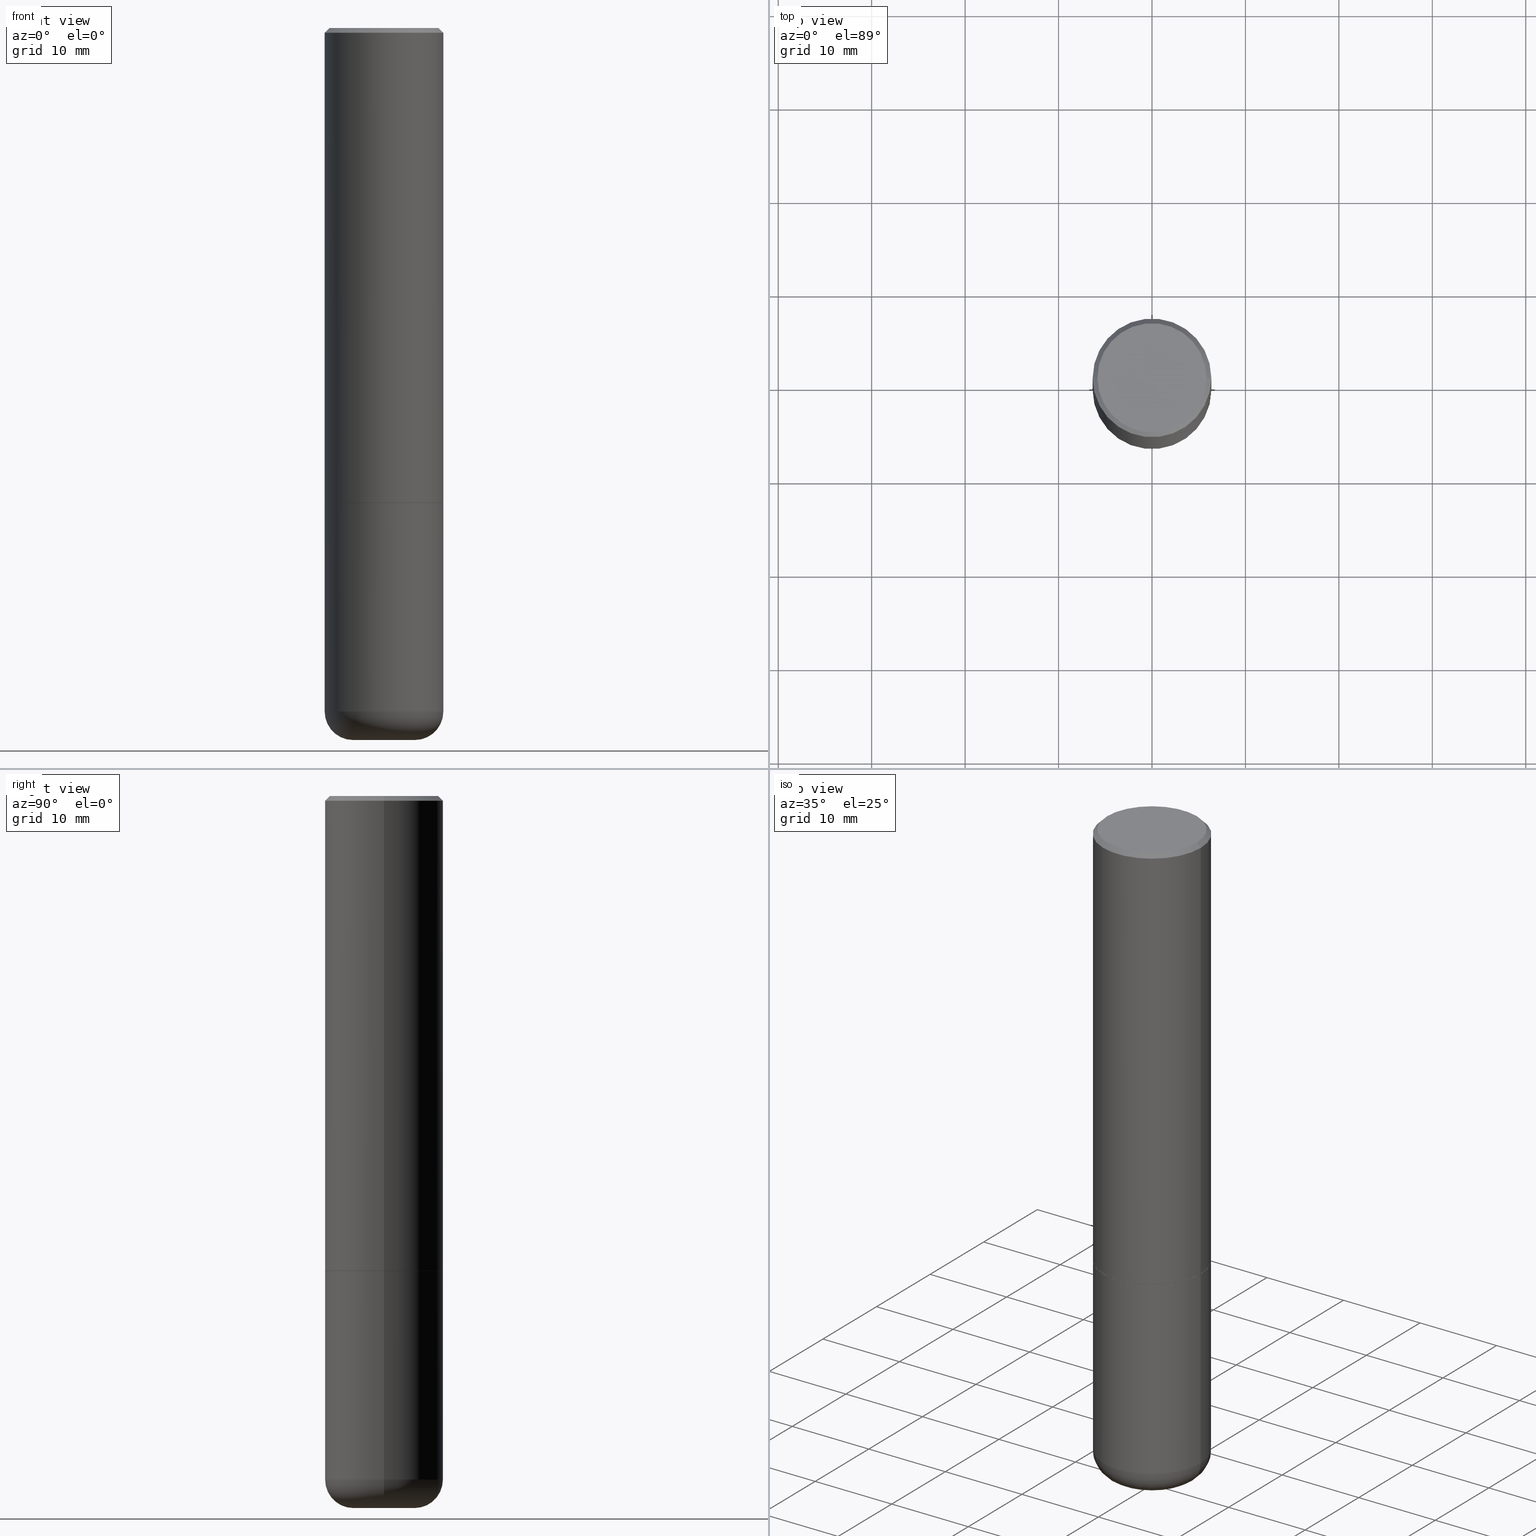
[diagram: canonical four-view strip — front | top / right | iso, engineering-drawing reading convention]
A machine part, canonical four-view strip (front | top / right | iso — engineering-drawing reading convention). The complete STEP part file that produces these views, byte-faithful:
ISO-10303-21;
HEADER;
FILE_DESCRIPTION (( 'STEP AP203' ),
    '1' );
FILE_NAME ('37047.STEP',
    '2024-03-01T19:11:57',
    ( '' ),
    ( '' ),
    'SwSTEP 2.0',
    'SolidWorks 2023',
    '' );
FILE_SCHEMA (( 'CONFIG_CONTROL_DESIGN' ));
ENDSEC;

DATA;
#1 = AXIS2_PLACEMENT_3D ( 'NONE', #264, #10, #138 ) ;
#2 = VERTEX_POINT ( 'NONE', #92 ) ;
#3 = DIRECTION ( 'NONE',  ( 0.7071067811865466846, -7.319954787623252890E-15, -0.7071067811865483499 ) ) ;
#4 = VERTEX_POINT ( 'NONE', #383 ) ;
#5 = CARTESIAN_POINT ( 'NONE',  ( -0.2500000000000001110, 1.776356839400251254E-15, -1.229733772563727146E-29 ) ) ;
#6 = EDGE_LOOP ( 'NONE', ( #351, #327, #72, #330 ) ) ;
#7 = DIRECTION ( 'NONE',  ( -1.000000000000000000, 7.105427357601003436E-15, 0.000000000000000000 ) ) ;
#8 = CIRCLE ( 'NONE', #21, 0.2299999999999998712 ) ;
#9 = AXIS2_PLACEMENT_3D ( 'NONE', #373, #341, #400 ) ;
#10 = DIRECTION ( 'NONE',  ( -2.445468806185136597E-29, 3.491481338843145583E-15, 1.000000000000000000 ) ) ;
#11 = CC_DESIGN_PERSON_AND_ORGANIZATION_ASSIGNMENT ( #322, #345, ( #134 ) ) ;
#12 = CARTESIAN_POINT ( 'NONE',  ( 7.042950161813194609E-29, -1.005546625586826130E-14, -2.880000000000000338 ) ) ;
#13 = EDGE_CURVE ( 'NONE', #126, #63, #99, .T. ) ;
#14 = EDGE_CURVE ( 'NONE', #2, #258, #215, .T. ) ;
#15 = AXIS2_PLACEMENT_3D ( 'NONE', #308, #240, #141 ) ;
#16 = LOCAL_TIME ( 14, 11, 57.00000000000000000, #60 ) ;
#17 = DIRECTION ( 'NONE',  ( -0.7071067811865466846, 2.468850131082247989E-15, -0.7071067811865483499 ) ) ;
#18 = CARTESIAN_POINT ( 'NONE',  ( 4.890937612370287172E-31, -6.982962677686310098E-17, -0.02000000000000005593 ) ) ;
#19 = CARTESIAN_POINT ( 'NONE',  ( -0.2489999999999999991, -5.213711265643642498E-15, -2.000000000000000444 ) ) ;
#20 = EDGE_CURVE ( 'NONE', #61, #2, #54, .T. ) ;
#21 = AXIS2_PLACEMENT_3D ( 'NONE', #137, #81, #139 ) ;
#22 = PRODUCT_DEFINITION_FORMATION_WITH_SPECIFIED_SOURCE ( 'ANY', '', #134, .NOT_KNOWN. ) ;
#23 = DIRECTION ( 'NONE',  ( 1.000000000000000000, -6.982962677686266711E-15, 0.000000000000000000 ) ) ;
#24 = MECHANICAL_CONTEXT ( 'NONE', #366, 'mechanical' ) ;
#25 = PERSON_AND_ORGANIZATION_ROLE ( 'creator' ) ;
#26 = EDGE_CURVE ( 'NONE', #216, #160, #242, .T. ) ;
#27 = ORIENTED_EDGE ( 'NONE', *, *, #265, .T. ) ;
#28 = TOROIDAL_SURFACE ( 'NONE', #40, 0.1300000000000000044, 0.1199999999999999123 ) ;
#29 = ORIENTED_EDGE ( 'NONE', *, *, #102, .T. ) ;
#30 = APPLICATION_PROTOCOL_DEFINITION ( 'international standard', 'config_control_design', 1994, #251 ) ;
#31 = ORIENTED_EDGE ( 'NONE', *, *, #68, .T. ) ;
#32 = CALENDAR_DATE ( 2024, 1, 3 ) ;
#33 = EDGE_LOOP ( 'NONE', ( #193, #27, #31, #191 ) ) ;
#34 = CC_DESIGN_APPROVAL ( #404, ( #22 ) ) ;
#35 = ORIENTED_EDGE ( 'NONE', *, *, #13, .T. ) ;
#36 =( GEOMETRIC_REPRESENTATION_CONTEXT ( 3 ) GLOBAL_UNCERTAINTY_ASSIGNED_CONTEXT ( ( #220 ) ) GLOBAL_UNIT_ASSIGNED_CONTEXT ( ( #256, #153, #58 ) ) REPRESENTATION_CONTEXT ( 'NONE', 'WORKASPACE' ) );
#37 = CARTESIAN_POINT ( 'NONE',  ( 0.2489999999999999991, -8.721720384430172617E-15, -2.000000000000000444 ) ) ;
#38 = DIRECTION ( 'NONE',  ( -2.445468806185136597E-29, 3.491481338843145583E-15, 1.000000000000000000 ) ) ;
#39 = CARTESIAN_POINT ( 'NONE',  ( -0.2500000000000000000, 1.675911042644703577E-15, -0.02000000000000005593 ) ) ;
#40 = AXIS2_PLACEMENT_3D ( 'NONE', #326, #266, #43 ) ;
#41 = AXIS2_PLACEMENT_3D ( 'NONE', #116, #408, #241 ) ;
#42 = EDGE_LOOP ( 'NONE', ( #354, #299 ) ) ;
#43 = DIRECTION ( 'NONE',  ( 1.000000000000000000, -6.982962677686265133E-15, 4.883557194083112340E-29 ) ) ;
#44 = DIRECTION ( 'NONE',  ( 2.445468806185136597E-29, -3.491481338843145583E-15, -1.000000000000000000 ) ) ;
#45 = CARTESIAN_POINT ( 'NONE',  ( 0.2299999999999998712, -1.681434332853598419E-15, 1.237868622129234180E-16 ) ) ;
#46 = DIMENSIONAL_EXPONENTS ( 1.000000000000000000, 0.000000000000000000, 0.000000000000000000, 0.000000000000000000, 0.000000000000000000, 0.000000000000000000, 0.000000000000000000 ) ;
#47 = LINE ( 'NONE', #307, #399 ) ;
#48 = DIRECTION ( 'NONE',  ( 1.000000000000000000, -6.982962677686266711E-15, 0.000000000000000000 ) ) ;
#49 = DIRECTION ( 'NONE',  ( 1.000000000000000000, -6.982962677686266711E-15, 4.876176775795935793E-29 ) ) ;
#50 = CARTESIAN_POINT ( 'NONE',  ( -0.1300000000000000044, -8.914923938254659640E-15, -3.000000000000000444 ) ) ;
#51 = FACE_OUTER_BOUND ( 'NONE', #33, .T. ) ;
#52 = DIRECTION ( 'NONE',  ( -1.000000000000000000, 6.982962677686266711E-15, 0.000000000000000000 ) ) ;
#53 = CC_DESIGN_PERSON_AND_ORGANIZATION_ASSIGNMENT ( #283, #90, ( #22 ) ) ;
#54 = CIRCLE ( 'NONE', #305, 0.2500000000000000000 ) ;
#55 = AXIS2_PLACEMENT_3D ( 'NONE', #127, #319, #93 ) ;
#56 = DIRECTION ( 'NONE',  ( 1.000000000000000000, -6.982962677686273810E-15, 0.000000000000000000 ) ) ;
#57 = DIRECTION ( 'NONE',  ( -1.000000000000000000, 6.982962677686265922E-15, -4.876176775795935793E-29 ) ) ;
#58 =( NAMED_UNIT ( * ) SI_UNIT ( $, .STERADIAN. ) SOLID_ANGLE_UNIT ( ) );
#59 = ADVANCED_FACE ( 'NONE', ( #333 ), #382, .T. ) ;
#60 = COORDINATED_UNIVERSAL_TIME_OFFSET ( 5, 0, .BEHIND. ) ;
#61 = VERTEX_POINT ( 'NONE', #78 ) ;
#62 = LOCAL_TIME ( 14, 11, 57.00000000000000000, #231 ) ;
#63 = VERTEX_POINT ( 'NONE', #272 ) ;
#64 = DATE_AND_TIME ( #217, #407 ) ;
#65 = ORIENTED_EDGE ( 'NONE', *, *, #26, .F. ) ;
#66 = APPROVAL_DATE_TIME ( #352, #404 ) ;
#67 = EDGE_LOOP ( 'NONE', ( #414, #254, #287, #133 ) ) ;
#68 = EDGE_CURVE ( 'NONE', #129, #216, #392, .T. ) ;
#69 = CALENDAR_DATE ( 2024, 1, 3 ) ;
#70 = DIRECTION ( 'NONE',  ( -1.000000000000000000, 6.982962677686266711E-15, 0.000000000000000000 ) ) ;
#71 = AXIS2_PLACEMENT_3D ( 'NONE', #145, #146, #143 ) ;
#72 = ORIENTED_EDGE ( 'NONE', *, *, #121, .T. ) ;
#73 = ORIENTED_EDGE ( 'NONE', *, *, #402, .F. ) ;
#74 = DIRECTION ( 'NONE',  ( -2.445468806185136877E-29, 3.491481338843145188E-15, 1.000000000000000000 ) ) ;
#75 = VERTEX_POINT ( 'NONE', #198 ) ;
#76 = APPROVAL_DATE_TIME ( #395, #334 ) ;
#77 = DIRECTION ( 'NONE',  ( 1.000000000000000000, -6.982962677686266711E-15, 0.000000000000000000 ) ) ;
#78 = CARTESIAN_POINT ( 'NONE',  ( -0.2499999999999999722, -8.279109416468010833E-15, -2.880000000000000338 ) ) ;
#79 = CC_DESIGN_APPROVAL ( #334, ( #270 ) ) ;
#80 = EDGE_CURVE ( 'NONE', #97, #63, #104, .T. ) ;
#81 = DIRECTION ( 'NONE',  ( -2.445468806185136597E-29, 3.491481338843145583E-15, 1.000000000000000000 ) ) ;
#82 = DIRECTION ( 'NONE',  ( 1.000000000000000000, -6.982962677686266711E-15, 4.876176775795935793E-29 ) ) ;
#83 = DIRECTION ( 'NONE',  ( -2.445468806185136877E-29, 3.491481338843145188E-15, 1.000000000000000000 ) ) ;
#84 = CLOSED_SHELL ( 'NONE', ( #245, #96, #207, #393, #59, #325 ) ) ;
#85 = CARTESIAN_POINT ( 'NONE',  ( 0.2500000000000001110, -1.745740669421567664E-15, 1.219044193948984649E-29 ) ) ;
#86 = CYLINDRICAL_SURFACE ( 'NONE', #89, 0.2500000000000000000 ) ;
#87 = DIRECTION ( 'NONE',  ( 1.000000000000000000, -6.982962677686265922E-15, 4.876176775795935793E-29 ) ) ;
#88 = EDGE_CURVE ( 'NONE', #126, #353, #391, .T. ) ;
#89 = AXIS2_PLACEMENT_3D ( 'NONE', #370, #247, #49 ) ;
#90 = PERSON_AND_ORGANIZATION_ROLE ( 'design_supplier' ) ;
#91 = APPROVAL_DATE_TIME ( #377, #255 ) ;
#92 = CARTESIAN_POINT ( 'NONE',  ( 0.2499999999999999722, -1.180120692528982640E-14, -2.880000000000000338 ) ) ;
#93 = DIRECTION ( 'NONE',  ( 1.000000000000000000, 0.000000000000000000, 0.000000000000000000 ) ) ;
#94 = ORIENTED_EDGE ( 'NONE', *, *, #88, .F. ) ;
#95 = COORDINATED_UNIVERSAL_TIME_OFFSET ( 5, 0, .BEHIND. ) ;
#96 = ADVANCED_FACE ( 'NONE', ( #394 ), #28, .T. ) ;
#97 = VERTEX_POINT ( 'NONE', #39 ) ;
#98 = PERSON_AND_ORGANIZATION ( #288, #343 ) ;
#99 = LINE ( 'NONE', #187, #357 ) ;
#100 = ORIENTED_EDGE ( 'NONE', *, *, #88, .T. ) ;
#101 = EDGE_LOOP ( 'NONE', ( #323, #389, #157, #289 ) ) ;
#102 = EDGE_CURVE ( 'NONE', #258, #4, #316, .T. ) ;
#103 = SHAPE_DEFINITION_REPRESENTATION ( #223, #199 ) ;
#104 = CIRCLE ( 'NONE', #159, 0.2500000000000000000 ) ;
#105 = CARTESIAN_POINT ( 'NONE',  ( 7.042950161813194609E-29, -1.005546625586826130E-14, -2.880000000000000338 ) ) ;
#106 = CARTESIAN_POINT ( 'NONE',  ( -0.1300000000000000044, -9.131760699380130235E-15, -2.880000000000000338 ) ) ;
#107 = EDGE_LOOP ( 'NONE', ( #195, #155, #386, #388 ) ) ;
#108 = DIRECTION ( 'NONE',  ( 7.105427357601001859E-15, 1.000000000000000000, -3.491481338843145583E-15 ) ) ;
#109 = DIRECTION ( 'NONE',  ( -2.445468806185136877E-29, 3.491481338843145188E-15, 1.000000000000000000 ) ) ;
#110 = CC_DESIGN_PERSON_AND_ORGANIZATION_ASSIGNMENT ( #257, #346, ( #344 ) ) ;
#111 = AXIS2_PLACEMENT_3D ( 'NONE', #144, #44, #70 ) ;
#112 = CC_DESIGN_SECURITY_CLASSIFICATION ( #270, ( #22 ) ) ;
#113 = CYLINDRICAL_SURFACE ( 'NONE', #132, 0.2500000000000000000 ) ;
#114 = CARTESIAN_POINT ( 'NONE',  ( 7.042950161813194609E-29, -1.005546625586826130E-14, -2.880000000000000338 ) ) ;
#115 = FACE_OUTER_BOUND ( 'NONE', #332, .T. ) ;
#116 = CARTESIAN_POINT ( 'NONE',  ( 0.000000000000000000, 0.000000000000000000, 0.000000000000000000 ) ) ;
#117 = CIRCLE ( 'NONE', #181, 0.1199999999999999262 ) ;
#118 = CIRCLE ( 'NONE', #9, 0.2489999999999999991 ) ;
#119 = DIRECTION ( 'NONE',  ( 1.000000000000000000, -6.982962677686273810E-15, 0.000000000000000000 ) ) ;
#120 = DIRECTION ( 'NONE',  ( -1.000000000000000000, 6.982962677686265922E-15, -4.876176775795935793E-29 ) ) ;
#121 = EDGE_CURVE ( 'NONE', #218, #2, #117, .T. ) ;
#122 = COORDINATED_UNIVERSAL_TIME_OFFSET ( 5, 0, .BEHIND. ) ;
#123 = AXIS2_PLACEMENT_3D ( 'NONE', #142, #190, #167 ) ;
#124 = AXIS2_PLACEMENT_3D ( 'NONE', #209, #311, #120 ) ;
#125 = ORIENTED_EDGE ( 'NONE', *, *, #235, .F. ) ;
#126 = VERTEX_POINT ( 'NONE', #45 ) ;
#127 = CARTESIAN_POINT ( 'NONE',  ( 0.000000000000000000, 0.000000000000000000, 0.000000000000000000 ) ) ;
#128 = EDGE_CURVE ( 'NONE', #61, #4, #331, .T. ) ;
#129 = VERTEX_POINT ( 'NONE', #165 ) ;
#130 = APPROVAL_STATUS ( 'not_yet_approved' ) ;
#131 = AXIS2_PLACEMENT_3D ( 'NONE', #246, #410, #48 ) ;
#132 = AXIS2_PLACEMENT_3D ( 'NONE', #238, #367, #82 ) ;
#133 = ORIENTED_EDGE ( 'NONE', *, *, #80, .F. ) ;
#134 = PRODUCT ( '37047', '37047', '', ( #24 ) ) ;
#135 = CARTESIAN_POINT ( 'NONE',  ( 0.2500000000000000000, -1.745740669421566678E-15, 1.219044193948983948E-29 ) ) ;
#136 = EDGE_CURVE ( 'NONE', #320, #61, #342, .T. ) ;
#137 = CARTESIAN_POINT ( 'NONE',  ( -3.027169101572137302E-45, 4.321995194103296744E-31, 1.237868622129119302E-16 ) ) ;
#138 = DIRECTION ( 'NONE',  ( 1.000000000000000000, -6.982962677686266711E-15, 0.000000000000000000 ) ) ;
#139 = DIRECTION ( 'NONE',  ( 1.000000000000000000, -6.982962677686266711E-15, 4.879110437680778240E-29 ) ) ;
#140 = DIRECTION ( 'NONE',  ( 1.000000000000000000, -6.982962677686262766E-15, 0.000000000000000000 ) ) ;
#141 = DIRECTION ( 'NONE',  ( 1.000000000000000000, -6.982962677686266711E-15, 0.000000000000000000 ) ) ;
#142 = CARTESIAN_POINT ( 'NONE',  ( 4.888492143564088712E-29, -6.979471196347448158E-15, -1.999000000000000110 ) ) ;
#143 = DIRECTION ( 'NONE',  ( -1.000000000000000000, 6.982962677686265922E-15, -4.876176775795935793E-29 ) ) ;
#144 = CARTESIAN_POINT ( 'NONE',  ( 4.890937612370287172E-31, -6.982962677686310098E-17, -0.02000000000000005593 ) ) ;
#145 = CARTESIAN_POINT ( 'NONE',  ( 1.606081415867840278E-15, 0.2299999999999998712, -7.411472768274671077E-16 ) ) ;
#146 = DIRECTION ( 'NONE',  ( 2.438088387897960049E-29, -3.491481338843145188E-15, -1.000000000000000000 ) ) ;
#147 = AXIS2_PLACEMENT_3D ( 'NONE', #271, #310, #23 ) ;
#148 = DIRECTION ( 'NONE',  ( -2.445468806185136597E-29, 3.491481338843145583E-15, 1.000000000000000000 ) ) ;
#149 = EDGE_CURVE ( 'NONE', #353, #126, #8, .T. ) ;
#150 = SECURITY_CLASSIFICATION_LEVEL ( 'unclassified' ) ;
#151 = DATE_TIME_ROLE ( 'creation_date' ) ;
#152 = EDGE_LOOP ( 'NONE', ( #94, #35, #295, #73 ) ) ;
#153 =( NAMED_UNIT ( * ) PLANE_ANGLE_UNIT ( ) SI_UNIT ( $, .RADIAN. ) );
#154 = ORIENTED_EDGE ( 'NONE', *, *, #80, .T. ) ;
#155 = ORIENTED_EDGE ( 'NONE', *, *, #128, .T. ) ;
#156 = CALENDAR_DATE ( 2024, 1, 3 ) ;
#157 = ORIENTED_EDGE ( 'NONE', *, *, #179, .F. ) ;
#158 = AXIS2_PLACEMENT_3D ( 'NONE', #239, #232, #192 ) ;
#159 = AXIS2_PLACEMENT_3D ( 'NONE', #396, #304, #77 ) ;
#160 = VERTEX_POINT ( 'NONE', #303 ) ;
#161 = ORIENTED_EDGE ( 'NONE', *, *, #380, .T. ) ;
#162 = DIRECTION ( 'NONE',  ( 1.000000000000000000, -6.982962677686262766E-15, 0.000000000000000000 ) ) ;
#163 = CYLINDRICAL_SURFACE ( 'NONE', #158, 0.2500000000000001110 ) ;
#164 = EDGE_CURVE ( 'NONE', #160, #97, #401, .T. ) ;
#165 = CARTESIAN_POINT ( 'NONE',  ( 0.2489999999999999991, -8.721720384430172617E-15, -2.000000000000000444 ) ) ;
#166 = PLANE ( 'NONE',  #176 ) ;
#167 = DIRECTION ( 'NONE',  ( 1.000000000000000000, -6.982962677686268288E-15, 0.000000000000000000 ) ) ;
#168 = ADVANCED_FACE ( 'NONE', ( #267 ), #163, .T. ) ;
#169 = DIRECTION ( 'NONE',  ( -2.445468806185136597E-29, 3.491481338843145583E-15, 1.000000000000000000 ) ) ;
#170 = ADVANCED_FACE ( 'NONE', ( #194 ), #171, .T. ) ;
#171 = CONICAL_SURFACE ( 'NONE', #259, 0.2489999999999999991, 0.7853981633975336552 ) ;
#172 = AXIS2_PLACEMENT_3D ( 'NONE', #244, #340, #52 ) ;
#173 = DIRECTION ( 'NONE',  ( -2.445468806185136597E-29, 3.491481338843145583E-15, 1.000000000000000000 ) ) ;
#174 = FACE_OUTER_BOUND ( 'NONE', #314, .T. ) ;
#175 = CARTESIAN_POINT ( 'NONE',  ( 7.336406418555409790E-29, -1.047444401652943635E-14, -3.000000000000000444 ) ) ;
#176 = AXIS2_PLACEMENT_3D ( 'NONE', #262, #339, #87 ) ;
#177 = DIRECTION ( 'NONE',  ( -2.445468806185136597E-29, 3.491481338843145583E-15, 1.000000000000000000 ) ) ;
#178 = CARTESIAN_POINT ( 'NONE',  ( 0.2500000000000002220, -8.725211865769017202E-15, -1.999000000000000110 ) ) ;
#179 = EDGE_CURVE ( 'NONE', #2, #61, #292, .T. ) ;
#180 = ORIENTED_EDGE ( 'NONE', *, *, #20, .T. ) ;
#181 = AXIS2_PLACEMENT_3D ( 'NONE', #365, #359, #363 ) ;
#182 = AXIS2_PLACEMENT_3D ( 'NONE', #175, #169, #119 ) ;
#183 = EDGE_LOOP ( 'NONE', ( #29, #161 ) ) ;
#184 = APPROVAL_STATUS ( 'not_yet_approved' ) ;
#185 = ORIENTED_EDGE ( 'NONE', *, *, #14, .T. ) ;
#186 = PERSON_AND_ORGANIZATION ( #288, #343 ) ;
#187 = CARTESIAN_POINT ( 'NONE',  ( 0.2500000000000000000, -1.784954126219746189E-15, -0.02000000000000005593 ) ) ;
#188 = CIRCLE ( 'NONE', #15, 0.2489999999999999991 ) ;
#189 = APPROVAL_PERSON_ORGANIZATION ( #290, #255, #385 ) ;
#190 = DIRECTION ( 'NONE',  ( -2.445468806185136597E-29, 3.491481338843145583E-15, 1.000000000000000000 ) ) ;
#191 = ORIENTED_EDGE ( 'NONE', *, *, #285, .F. ) ;
#192 = DIRECTION ( 'NONE',  ( 1.000000000000000000, -6.982962677686267499E-15, 4.876176775795936353E-29 ) ) ;
#193 = ORIENTED_EDGE ( 'NONE', *, *, #237, .F. ) ;
#194 = FACE_OUTER_BOUND ( 'NONE', #224, .T. ) ;
#195 = ORIENTED_EDGE ( 'NONE', *, *, #179, .T. ) ;
#196 = VECTOR ( 'NONE', #109, 39.37007874015748143 ) ;
#197 = DIRECTION ( 'NONE',  ( -2.445468806185136597E-29, 3.491481338843145583E-15, 1.000000000000000000 ) ) ;
#198 = CARTESIAN_POINT ( 'NONE',  ( -0.2489999999999999991, -5.208412811295419307E-15, -2.000000000000000444 ) ) ;
#199 = ADVANCED_BREP_SHAPE_REPRESENTATION ( '37047', ( #213, #358, #55 ), #36 ) ;
#200 = ADVANCED_FACE ( 'NONE', ( #51 ), #284, .T. ) ;
#201 = CARTESIAN_POINT ( 'NONE',  ( 7.336406418555409790E-29, -1.047444401652943635E-14, -3.000000000000000444 ) ) ;
#202 = DIRECTION ( 'NONE',  ( -0.7071067811866078578, 7.493145998870571886E-15, 0.7071067811864871766 ) ) ;
#203 = AXIS2_PLACEMENT_3D ( 'NONE', #12, #38, #228 ) ;
#204 = FACE_OUTER_BOUND ( 'NONE', #183, .T. ) ;
#205 = LOCAL_TIME ( 14, 11, 57.00000000000000000, #122 ) ;
#206 = LINE ( 'NONE', #19, #210 ) ;
#207 = ADVANCED_FACE ( 'NONE', ( #204 ), #372, .F. ) ;
#208 = FACE_OUTER_BOUND ( 'NONE', #107, .T. ) ;
#209 = CARTESIAN_POINT ( 'NONE',  ( 7.336406418555409790E-29, -1.047444401652943635E-14, -3.000000000000000444 ) ) ;
#210 = VECTOR ( 'NONE', #202, 39.37007874015748143 ) ;
#211 = APPROVAL_PERSON_ORGANIZATION ( #98, #404, #221 ) ;
#212 = CC_DESIGN_DATE_AND_TIME_ASSIGNMENT ( #315, #375, ( #270 ) ) ;
#213 = MANIFOLD_SOLID_BREP ( 'Body-Move/Copy2[1]', #84 ) ;
#214 = LENGTH_MEASURE_WITH_UNIT ( LENGTH_MEASURE( 0.02539999999999999897 ), #417 );
#215 = LINE ( 'NONE', #135, #196 ) ;
#216 = VERTEX_POINT ( 'NONE', #178 ) ;
#217 = CALENDAR_DATE ( 2024, 1, 3 ) ;
#218 = VERTEX_POINT ( 'NONE', #312 ) ;
#219 = ADVANCED_FACE ( 'NONE', ( #282 ), #233, .T. ) ;
#220 = UNCERTAINTY_MEASURE_WITH_UNIT (LENGTH_MEASURE( 1.000000000000000082E-05 ), #256, 'distance_accuracy_value', 'NONE');
#221 = APPROVAL_ROLE ( '' ) ;
#222 = ORIENTED_EDGE ( 'NONE', *, *, #26, .T. ) ;
#223 = PRODUCT_DEFINITION_SHAPE ( 'NONE', 'NONE',  #344 ) ;
#224 = EDGE_LOOP ( 'NONE', ( #324, #415, #65, #418 ) ) ;
#225 = ADVANCED_FACE ( 'NONE', ( #297 ), #166, .F. ) ;
#226 = VECTOR ( 'NONE', #361, 39.37007874015748143 ) ;
#227 = AXIS2_PLACEMENT_3D ( 'NONE', #18, #177, #280 ) ;
#228 = DIRECTION ( 'NONE',  ( 1.000000000000000000, -6.982962677686265133E-15, 4.883557194083112340E-29 ) ) ;
#229 = CARTESIAN_POINT ( 'NONE',  ( 4.890937612370273754E-29, -6.982962677686291954E-15, -2.000000000000000444 ) ) ;
#230 = EDGE_LOOP ( 'NONE', ( #222, #296, #381, #125 ) ) ;
#231 = COORDINATED_UNIVERSAL_TIME_OFFSET ( 5, 0, .BEHIND. ) ;
#232 = DIRECTION ( 'NONE',  ( -2.445468806185136597E-29, 3.491481338843145583E-15, 1.000000000000000000 ) ) ;
#233 = CONICAL_SURFACE ( 'NONE', #111, 0.2500000000000000000, 0.7853981633974471688 ) ;
#234 = CIRCLE ( 'NONE', #147, 0.2500000000000000000 ) ;
#235 = EDGE_CURVE ( 'NONE', #216, #63, #338, .T. ) ;
#236 = DIRECTION ( 'NONE',  ( -2.445468806185136597E-29, 3.491481338843145583E-15, 1.000000000000000000 ) ) ;
#237 = EDGE_CURVE ( 'NONE', #75, #160, #206, .T. ) ;
#238 = CARTESIAN_POINT ( 'NONE',  ( 0.000000000000000000, 0.000000000000000000, 0.000000000000000000 ) ) ;
#239 = CARTESIAN_POINT ( 'NONE',  ( 0.000000000000000000, 0.000000000000000000, 0.000000000000000000 ) ) ;
#240 = DIRECTION ( 'NONE',  ( -2.445468806185136597E-29, 3.491481338843145583E-15, 1.000000000000000000 ) ) ;
#241 = DIRECTION ( 'NONE',  ( 1.000000000000000000, -6.982962677686267499E-15, 4.876176775795936353E-29 ) ) ;
#242 = CIRCLE ( 'NONE', #123, 0.2500000000000002220 ) ;
#243 = LOCAL_TIME ( 14, 11, 57.00000000000000000, #313 ) ;
#244 = CARTESIAN_POINT ( 'NONE',  ( 4.890937612370287172E-31, -6.982962677686310098E-17, -0.02000000000000005593 ) ) ;
#245 = ADVANCED_FACE ( 'NONE', ( #208 ), #86, .T. ) ;
#246 = CARTESIAN_POINT ( 'NONE',  ( 4.890937612370273754E-29, -6.982962677686291954E-15, -2.000000000000000444 ) ) ;
#247 = DIRECTION ( 'NONE',  ( -2.445468806185136597E-29, 3.491481338843145583E-15, 1.000000000000000000 ) ) ;
#248 = CARTESIAN_POINT ( 'NONE',  ( 4.890937612370273754E-29, -6.982962677686291954E-15, -2.000000000000000444 ) ) ;
#249 = CALENDAR_DATE ( 2024, 1, 3 ) ;
#250 = VECTOR ( 'NONE', #302, 39.37007874015748143 ) ;
#251 = APPLICATION_CONTEXT ( 'configuration controlled 3d designs of mechanical parts and assemblies' ) ;
#252 = EDGE_CURVE ( 'NONE', #218, #320, #269, .T. ) ;
#253 = APPROVAL_STATUS ( 'not_yet_approved' ) ;
#254 = ORIENTED_EDGE ( 'NONE', *, *, #285, .T. ) ;
#255 = APPROVAL ( #130, 'UNSPECIFIED' ) ;
#256 =( CONVERSION_BASED_UNIT ( 'INCH', #214 ) LENGTH_UNIT ( ) NAMED_UNIT ( #46 ) );
#257 = PERSON_AND_ORGANIZATION ( #288, #343 ) ;
#258 = VERTEX_POINT ( 'NONE', #273 ) ;
#259 = AXIS2_PLACEMENT_3D ( 'NONE', #229, #197, #390 ) ;
#260 = PRODUCT_RELATED_PRODUCT_CATEGORY ( 'detail', '', ( #134 ) ) ;
#261 = ORIENTED_EDGE ( 'NONE', *, *, #380, .F. ) ;
#262 = CARTESIAN_POINT ( 'NONE',  ( 4.890937612370273754E-29, -6.982962677686291954E-15, -2.000000000000000444 ) ) ;
#263 = EDGE_LOOP ( 'NONE', ( #362, #347, #378, #154 ) ) ;
#264 = CARTESIAN_POINT ( 'NONE',  ( 4.890937612370273754E-29, -6.982962677686291954E-15, -2.000000000000000444 ) ) ;
#265 = EDGE_CURVE ( 'NONE', #75, #129, #188, .T. ) ;
#266 = DIRECTION ( 'NONE',  ( -2.445468806185136597E-29, 3.491481338843145583E-15, 1.000000000000000000 ) ) ;
#267 = FACE_OUTER_BOUND ( 'NONE', #230, .T. ) ;
#268 = DIRECTION ( 'NONE',  ( 1.000000000000000000, -6.982962677686266711E-15, 4.879110437680778240E-29 ) ) ;
#269 = CIRCLE ( 'NONE', #376, 0.1300000000000000044 ) ;
#270 = SECURITY_CLASSIFICATION ( '', '', #150 ) ;
#271 = CARTESIAN_POINT ( 'NONE',  ( 4.890937612370273754E-29, -6.982962677686291954E-15, -2.000000000000000444 ) ) ;
#272 = CARTESIAN_POINT ( 'NONE',  ( 0.2500000000000000000, -1.784954126219746189E-15, -0.02000000000000005593 ) ) ;
#273 = CARTESIAN_POINT ( 'NONE',  ( 0.2500000000000000000, -8.728703347107858632E-15, -2.000000000000000444 ) ) ;
#274 = PLANE ( 'NONE',  #71 ) ;
#275 = EDGE_CURVE ( 'NONE', #63, #97, #350, .T. ) ;
#276 = CYLINDRICAL_SURFACE ( 'NONE', #41, 0.2500000000000001110 ) ;
#277 = AXIS2_PLACEMENT_3D ( 'NONE', #105, #329, #162 ) ;
#278 = CONICAL_SURFACE ( 'NONE', #172, 0.2500000000000000000, 0.7853981633974471688 ) ;
#279 = CC_DESIGN_DATE_AND_TIME_ASSIGNMENT ( #64, #151, ( #344 ) ) ;
#280 = DIRECTION ( 'NONE',  ( 1.000000000000000000, -6.982962677686266711E-15, 0.000000000000000000 ) ) ;
#281 = PERSON_AND_ORGANIZATION ( #288, #343 ) ;
#282 = FACE_OUTER_BOUND ( 'NONE', #263, .T. ) ;
#283 = PERSON_AND_ORGANIZATION ( #288, #343 ) ;
#284 = CONICAL_SURFACE ( 'NONE', #131, 0.2489999999999999991, 0.7853981633975336552 ) ;
#285 = EDGE_CURVE ( 'NONE', #160, #216, #337, .T. ) ;
#286 = ORIENTED_EDGE ( 'NONE', *, *, #252, .F. ) ;
#287 = ORIENTED_EDGE ( 'NONE', *, *, #235, .T. ) ;
#288 = PERSON ( 'UNSPECIFIED', 'UNSPECIFIED', 'UNSPECIFIED', ('UNSPECIFIED'), ('UNSPECIFIED'), ('UNSPECIFIED') ) ;
#289 = ORIENTED_EDGE ( 'NONE', *, *, #121, .F. ) ;
#290 = PERSON_AND_ORGANIZATION ( #288, #343 ) ;
#291 = EDGE_LOOP ( 'NONE', ( #317, #100 ) ) ;
#292 = CIRCLE ( 'NONE', #277, 0.2500000000000000000 ) ;
#293 = CC_DESIGN_PERSON_AND_ORGANIZATION_ASSIGNMENT ( #281, #411, ( #270 ) ) ;
#294 = ADVANCED_FACE ( 'NONE', ( #409 ), #274, .F. ) ;
#295 = ORIENTED_EDGE ( 'NONE', *, *, #275, .T. ) ;
#296 = ORIENTED_EDGE ( 'NONE', *, *, #164, .T. ) ;
#297 = FACE_OUTER_BOUND ( 'NONE', #42, .T. ) ;
#298 = CARTESIAN_POINT ( 'NONE',  ( -0.2500000000000000000, 1.776356839400250465E-15, -1.229733772563726445E-29 ) ) ;
#299 = ORIENTED_EDGE ( 'NONE', *, *, #265, .F. ) ;
#300 = CARTESIAN_POINT ( 'NONE',  ( -3.027169101572137302E-45, 4.321995194103296744E-31, 1.237868622129119302E-16 ) ) ;
#301 = CLOSED_SHELL ( 'NONE', ( #170, #168, #355, #219, #321, #200, #225, #294 ) ) ;
#302 = DIRECTION ( 'NONE',  ( -2.445468806185136877E-29, 3.491481338843145188E-15, 1.000000000000000000 ) ) ;
#303 = CARTESIAN_POINT ( 'NONE',  ( -0.2500000000000002220, -1.748293572161901516E-15, -1.999000000000000110 ) ) ;
#304 = DIRECTION ( 'NONE',  ( -2.445468806185136597E-29, 3.491481338843145583E-15, 1.000000000000000000 ) ) ;
#305 = AXIS2_PLACEMENT_3D ( 'NONE', #114, #368, #140 ) ;
#306 = CIRCLE ( 'NONE', #182, 0.1300000000000000044 ) ;
#307 = CARTESIAN_POINT ( 'NONE',  ( -0.2500000000000000000, 1.675911042644703577E-15, -0.02000000000000005593 ) ) ;
#308 = CARTESIAN_POINT ( 'NONE',  ( 4.890937612370273754E-29, -6.982962677686291954E-15, -2.000000000000000444 ) ) ;
#309 = PLANE ( 'NONE',  #124 ) ;
#310 = DIRECTION ( 'NONE',  ( -2.445468806185136597E-29, 3.491481338843145583E-15, 1.000000000000000000 ) ) ;
#311 = DIRECTION ( 'NONE',  ( 2.438088387897960049E-29, -3.491481338843145188E-15, -1.000000000000000000 ) ) ;
#312 = CARTESIAN_POINT ( 'NONE',  ( 0.1300000000000000044, -1.138222916462865292E-14, -3.000000000000000444 ) ) ;
#313 = COORDINATED_UNIVERSAL_TIME_OFFSET ( 5, 0, .BEHIND. ) ;
#314 = EDGE_LOOP ( 'NONE', ( #286, #356 ) ) ;
#315 = DATE_AND_TIME ( #249, #205 ) ;
#316 = CIRCLE ( 'NONE', #1, 0.2500000000000000000 ) ;
#317 = ORIENTED_EDGE ( 'NONE', *, *, #149, .T. ) ;
#318 = APPROVAL_PERSON_ORGANIZATION ( #412, #334, #360 ) ;
#319 = DIRECTION ( 'NONE',  ( 0.000000000000000000, 0.000000000000000000, 1.000000000000000000 ) ) ;
#320 = VERTEX_POINT ( 'NONE', #50 ) ;
#321 = ADVANCED_FACE ( 'NONE', ( #405 ), #276, .T. ) ;
#322 = PERSON_AND_ORGANIZATION ( #288, #343 ) ;
#323 = ORIENTED_EDGE ( 'NONE', *, *, #252, .T. ) ;
#324 = ORIENTED_EDGE ( 'NONE', *, *, #387, .T. ) ;
#325 = ADVANCED_FACE ( 'NONE', ( #174 ), #309, .T. ) ;
#326 = CARTESIAN_POINT ( 'NONE',  ( 7.042950161813194609E-29, -1.005546625586826130E-14, -2.880000000000000338 ) ) ;
#327 = ORIENTED_EDGE ( 'NONE', *, *, #348, .T. ) ;
#328 = CC_DESIGN_PERSON_AND_ORGANIZATION_ASSIGNMENT ( #186, #25, ( #22 ) ) ;
#329 = DIRECTION ( 'NONE',  ( -2.445468806185136597E-29, 3.491481338843145583E-15, 1.000000000000000000 ) ) ;
#330 = ORIENTED_EDGE ( 'NONE', *, *, #20, .F. ) ;
#331 = LINE ( 'NONE', #298, #250 ) ;
#332 = EDGE_LOOP ( 'NONE', ( #349, #180, #185, #261 ) ) ;
#333 = FACE_OUTER_BOUND ( 'NONE', #6, .T. ) ;
#334 = APPROVAL ( #253, 'UNSPECIFIED' ) ;
#335 = FACE_OUTER_BOUND ( 'NONE', #152, .T. ) ;
#336 = AXIS2_PLACEMENT_3D ( 'NONE', #106, #108, #7 ) ;
#337 = CIRCLE ( 'NONE', #384, 0.2500000000000002220 ) ;
#338 = LINE ( 'NONE', #85, #397 ) ;
#339 = DIRECTION ( 'NONE',  ( -2.438088387897960049E-29, 3.491481338843145188E-15, 1.000000000000000000 ) ) ;
#340 = DIRECTION ( 'NONE',  ( 2.445468806185136597E-29, -3.491481338843145583E-15, -1.000000000000000000 ) ) ;
#341 = DIRECTION ( 'NONE',  ( -2.445468806185136597E-29, 3.491481338843145583E-15, 1.000000000000000000 ) ) ;
#342 = CIRCLE ( 'NONE', #336, 0.1199999999999999262 ) ;
#343 = ORGANIZATION ( 'UNSPECIFIED', 'UNSPECIFIED', '' ) ;
#344 = PRODUCT_DEFINITION ( 'UNKNOWN', '', #22, #416 ) ;
#345 = PERSON_AND_ORGANIZATION_ROLE ( 'design_owner' ) ;
#346 = PERSON_AND_ORGANIZATION_ROLE ( 'creator' ) ;
#347 = ORIENTED_EDGE ( 'NONE', *, *, #149, .F. ) ;
#348 = EDGE_CURVE ( 'NONE', #320, #218, #306, .T. ) ;
#349 = ORIENTED_EDGE ( 'NONE', *, *, #128, .F. ) ;
#350 = CIRCLE ( 'NONE', #227, 0.2500000000000000000 ) ;
#351 = ORIENTED_EDGE ( 'NONE', *, *, #136, .F. ) ;
#352 = DATE_AND_TIME ( #32, #16 ) ;
#353 = VERTEX_POINT ( 'NONE', #403 ) ;
#354 = ORIENTED_EDGE ( 'NONE', *, *, #387, .F. ) ;
#355 = ADVANCED_FACE ( 'NONE', ( #335 ), #278, .T. ) ;
#356 = ORIENTED_EDGE ( 'NONE', *, *, #348, .F. ) ;
#357 = VECTOR ( 'NONE', #3, 39.37007874015748143 ) ;
#358 = MANIFOLD_SOLID_BREP ( 'Body-Move/Copy2[2]', #301 ) ;
#359 = DIRECTION ( 'NONE',  ( -6.982962677686266711E-15, -1.000000000000000000, 3.491481338843145583E-15 ) ) ;
#360 = APPROVAL_ROLE ( '' ) ;
#361 = DIRECTION ( 'NONE',  ( 0.7071067811866078578, -2.468850131082888544E-15, 0.7071067811864871766 ) ) ;
#362 = ORIENTED_EDGE ( 'NONE', *, *, #13, .F. ) ;
#363 = DIRECTION ( 'NONE',  ( 1.000000000000000000, -6.982962677686272233E-15, 0.000000000000000000 ) ) ;
#364 = AXIS2_PLACEMENT_3D ( 'NONE', #248, #374, #57 ) ;
#365 = CARTESIAN_POINT ( 'NONE',  ( 0.1300000000000000044, -1.096325140396747629E-14, -2.880000000000000338 ) ) ;
#366 = APPLICATION_CONTEXT ( 'configuration controlled 3d designs of mechanical parts and assemblies' ) ;
#367 = DIRECTION ( 'NONE',  ( -2.445468806185136597E-29, 3.491481338843145583E-15, 1.000000000000000000 ) ) ;
#368 = DIRECTION ( 'NONE',  ( -2.445468806185136597E-29, 3.491481338843145583E-15, 1.000000000000000000 ) ) ;
#369 = CARTESIAN_POINT ( 'NONE',  ( 4.888492143564088712E-29, -6.979471196347448158E-15, -1.999000000000000110 ) ) ;
#370 = CARTESIAN_POINT ( 'NONE',  ( 0.000000000000000000, 0.000000000000000000, 0.000000000000000000 ) ) ;
#371 = DIRECTION ( 'NONE',  ( 1.000000000000000000, -6.982962677686268288E-15, 0.000000000000000000 ) ) ;
#372 = PLANE ( 'NONE',  #364 ) ;
#373 = CARTESIAN_POINT ( 'NONE',  ( 4.890937612370273754E-29, -6.982962677686291954E-15, -2.000000000000000444 ) ) ;
#374 = DIRECTION ( 'NONE',  ( 2.438088387897960049E-29, -3.491481338843145188E-15, -1.000000000000000000 ) ) ;
#375 = DATE_TIME_ROLE ( 'classification_date' ) ;
#376 = AXIS2_PLACEMENT_3D ( 'NONE', #201, #173, #56 ) ;
#377 = DATE_AND_TIME ( #156, #243 ) ;
#378 = ORIENTED_EDGE ( 'NONE', *, *, #402, .T. ) ;
#379 = APPLICATION_PROTOCOL_DEFINITION ( 'international standard', 'config_control_design', 1994, #366 ) ;
#380 = EDGE_CURVE ( 'NONE', #4, #258, #234, .T. ) ;
#381 = ORIENTED_EDGE ( 'NONE', *, *, #275, .F. ) ;
#382 = TOROIDAL_SURFACE ( 'NONE', #203, 0.1300000000000000044, 0.1199999999999999123 ) ;
#383 = CARTESIAN_POINT ( 'NONE',  ( -0.2500000000000000000, -6.742857627377025372E-15, -2.000000000000000444 ) ) ;
#384 = AXIS2_PLACEMENT_3D ( 'NONE', #369, #148, #371 ) ;
#385 = APPROVAL_ROLE ( '' ) ;
#386 = ORIENTED_EDGE ( 'NONE', *, *, #102, .F. ) ;
#387 = EDGE_CURVE ( 'NONE', #129, #75, #118, .T. ) ;
#388 = ORIENTED_EDGE ( 'NONE', *, *, #14, .F. ) ;
#389 = ORIENTED_EDGE ( 'NONE', *, *, #136, .T. ) ;
#390 = DIRECTION ( 'NONE',  ( 1.000000000000000000, -6.982962677686266711E-15, 0.000000000000000000 ) ) ;
#391 = CIRCLE ( 'NONE', #406, 0.2299999999999998712 ) ;
#392 = LINE ( 'NONE', #37, #226 ) ;
#393 = ADVANCED_FACE ( 'NONE', ( #115 ), #113, .T. ) ;
#394 = FACE_OUTER_BOUND ( 'NONE', #101, .T. ) ;
#395 = DATE_AND_TIME ( #69, #62 ) ;
#396 = CARTESIAN_POINT ( 'NONE',  ( 4.890937612370287172E-31, -6.982962677686310098E-17, -0.02000000000000005593 ) ) ;
#397 = VECTOR ( 'NONE', #83, 39.37007874015748143 ) ;
#398 = VECTOR ( 'NONE', #74, 39.37007874015748143 ) ;
#399 = VECTOR ( 'NONE', #17, 39.37007874015748143 ) ;
#400 = DIRECTION ( 'NONE',  ( 1.000000000000000000, -6.982962677686266711E-15, 0.000000000000000000 ) ) ;
#401 = LINE ( 'NONE', #5, #398 ) ;
#402 = EDGE_CURVE ( 'NONE', #353, #97, #47, .T. ) ;
#403 = CARTESIAN_POINT ( 'NONE',  ( -0.2299999999999998712, 1.640996229256272125E-15, 1.237868622129005656E-16 ) ) ;
#404 = APPROVAL ( #184, 'UNSPECIFIED' ) ;
#405 = FACE_OUTER_BOUND ( 'NONE', #67, .T. ) ;
#406 = AXIS2_PLACEMENT_3D ( 'NONE', #300, #236, #268 ) ;
#407 = LOCAL_TIME ( 14, 11, 57.00000000000000000, #95 ) ;
#408 = DIRECTION ( 'NONE',  ( -2.445468806185136597E-29, 3.491481338843145583E-15, 1.000000000000000000 ) ) ;
#409 = FACE_OUTER_BOUND ( 'NONE', #291, .T. ) ;
#410 = DIRECTION ( 'NONE',  ( -2.445468806185136597E-29, 3.491481338843145583E-15, 1.000000000000000000 ) ) ;
#411 = PERSON_AND_ORGANIZATION_ROLE ( 'classification_officer' ) ;
#412 = PERSON_AND_ORGANIZATION ( #288, #343 ) ;
#413 = CC_DESIGN_APPROVAL ( #255, ( #344 ) ) ;
#414 = ORIENTED_EDGE ( 'NONE', *, *, #164, .F. ) ;
#415 = ORIENTED_EDGE ( 'NONE', *, *, #237, .T. ) ;
#416 = DESIGN_CONTEXT ( 'detailed design', #251, 'design' ) ;
#417 =( LENGTH_UNIT ( ) NAMED_UNIT ( * ) SI_UNIT ( $, .METRE. ) );
#418 = ORIENTED_EDGE ( 'NONE', *, *, #68, .F. ) ;
ENDSEC;
END-ISO-10303-21;
